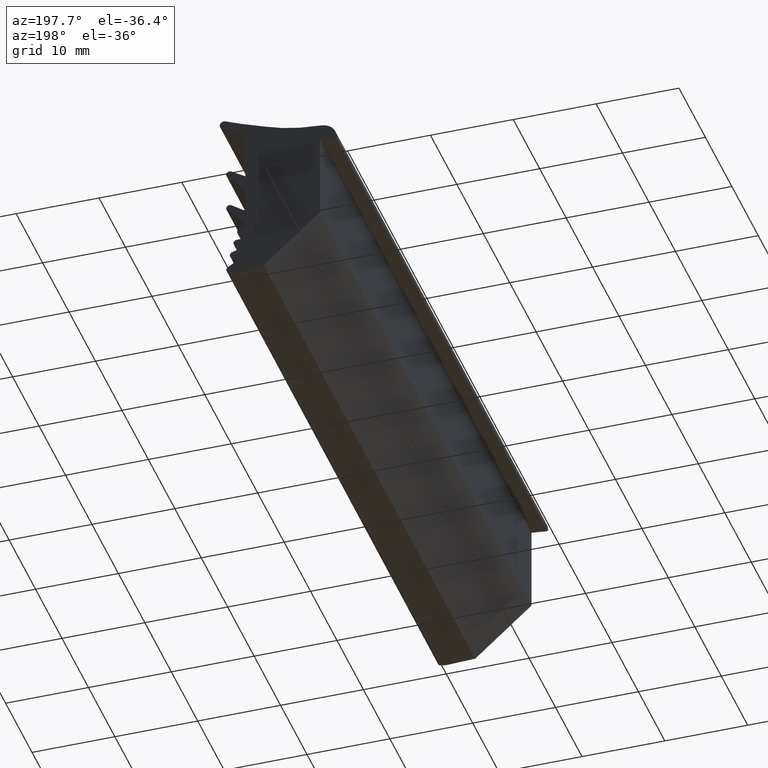
[diagram: clean part render]
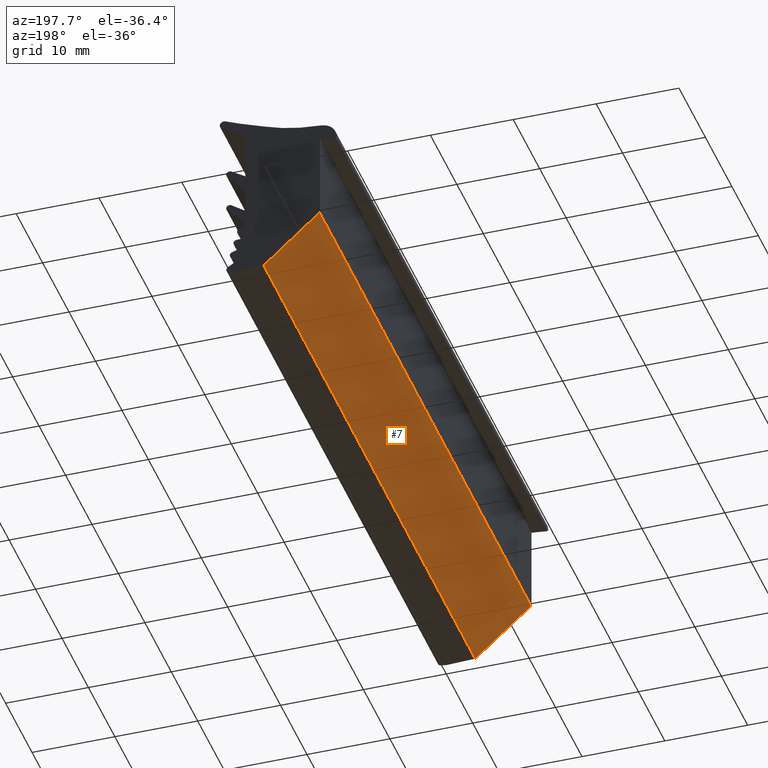
[diagram: same view with one face highlighted and labeled with its STEP entity id]
A machine part, auxiliary view. The second image highlights one B-rep face of the part: STEP entity #7.
In plain terms, the highlighted planar face has unit normal (0.6666, 0, 0.7454).
Its self-contained STEP definition (entity closure, byte-faithful):
#7 = ADVANCED_FACE ( 'NONE', ( #715 ), #1344, .F. ) ;
#130 = VECTOR ( 'NONE', #1539, 1000.000000000000000 ) ;
#139 = LINE ( 'NONE', #1591, #130 ) ;
#175 = LINE ( 'NONE', #1595, #188 ) ;
#188 = VECTOR ( 'NONE', #1579, 1000.000000000000000 ) ;
#503 = AXIS2_PLACEMENT_3D ( 'NONE', #1345, #1333, #1332 ) ;
#557 = EDGE_CURVE ( 'NONE', #1380, #1351, #175, .T. ) ;
#593 = EDGE_CURVE ( 'NONE', #1350, #1243, #139, .T. ) ;
#598 = EDGE_CURVE ( 'NONE', #1243, #1351, #1968, .T. ) ;
#715 = FACE_OUTER_BOUND ( 'NONE', #1812, .T. ) ;
#1243 = VERTEX_POINT ( 'NONE', #1735 ) ;
#1332 = DIRECTION ( 'NONE',  ( 0.7454129483658740200, 0.0000000000000000000, -0.6666029825979590300 ) ) ;
#1333 = DIRECTION ( 'NONE',  ( 0.6666029825979590300, 0.0000000000000000000, 0.7454129483658740200 ) ) ;
#1344 = PLANE ( 'NONE',  #503 ) ;
#1345 = CARTESIAN_POINT ( 'NONE',  ( -3.497377207949899700, 80.00000000000000000, 0.1354720093371390200 ) ) ;
#1350 = VERTEX_POINT ( 'NONE', #1714 ) ;
#1351 = VERTEX_POINT ( 'NONE', #1712 ) ;
#1380 = VERTEX_POINT ( 'NONE', #1702 ) ;
#1406 = CARTESIAN_POINT ( 'NONE',  ( -10.22832674396300100, 0.0000000000000000000, 6.154781234188980000 ) ) ;
#1407 = DIRECTION ( 'NONE',  ( 0.7454129483658715700, 0.0000000000000000000, -0.6666029825979618000 ) ) ;
#1539 = DIRECTION ( 'NONE',  ( -0.0000000000000000000, -1.000000000000000000, -0.0000000000000000000 ) ) ;
#1579 = DIRECTION ( 'NONE',  ( 0.0000000000000000000, -1.000000000000000000, -0.0000000000000000000 ) ) ;
#1591 = CARTESIAN_POINT ( 'NONE',  ( -10.22832674396302500, 80.00000000000000000, 6.154781234188960500 ) ) ;
#1595 = CARTESIAN_POINT ( 'NONE',  ( -3.497377207949900100, 80.00000000000000000, 0.1354720093371389900 ) ) ;
#1647 = DIRECTION ( 'NONE',  ( 0.7454129483658715700, 0.0000000000000000000, -0.6666029825979618000 ) ) ;
#1702 = CARTESIAN_POINT ( 'NONE',  ( -3.497377207949901900, 80.00000000000000000, 0.1354720093371401300 ) ) ;
#1712 = CARTESIAN_POINT ( 'NONE',  ( -3.497377207949903300, 0.0000000000000000000, 0.1354720093371401800 ) ) ;
#1714 = CARTESIAN_POINT ( 'NONE',  ( -10.22832674396306800, 80.00000000000500200, 6.154781234189028900 ) ) ;
#1735 = CARTESIAN_POINT ( 'NONE',  ( -10.22832674396307300, 0.0000000000000000000, 6.154781234189022700 ) ) ;
#1755 = CARTESIAN_POINT ( 'NONE',  ( -10.22832674396300100, 80.00000000000000000, 6.154781234188980000 ) ) ;
#1789 = ORIENTED_EDGE ( 'NONE', *, *, #593, .F. ) ;
#1791 = ORIENTED_EDGE ( 'NONE', *, *, #557, .T. ) ;
#1812 = EDGE_LOOP ( 'NONE', ( #1789, #1824, #1791, #1942 ) ) ;
#1824 = ORIENTED_EDGE ( 'NONE', *, *, #2059, .T. ) ;
#1942 = ORIENTED_EDGE ( 'NONE', *, *, #598, .F. ) ;
#1968 = LINE ( 'NONE', #1406, #1987 ) ;
#1981 = VECTOR ( 'NONE', #1647, 1000.000000000000000 ) ;
#1982 = LINE ( 'NONE', #1755, #1981 ) ;
#1987 = VECTOR ( 'NONE', #1407, 1000.000000000000000 ) ;
#2059 = EDGE_CURVE ( 'NONE', #1350, #1380, #1982, .T. ) ;